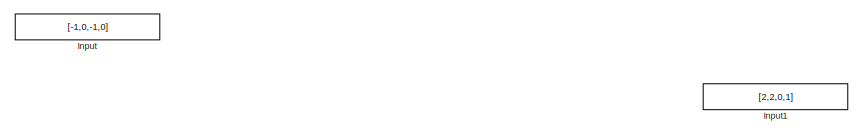
[diagram: root canvas - part 1/3, top left region]
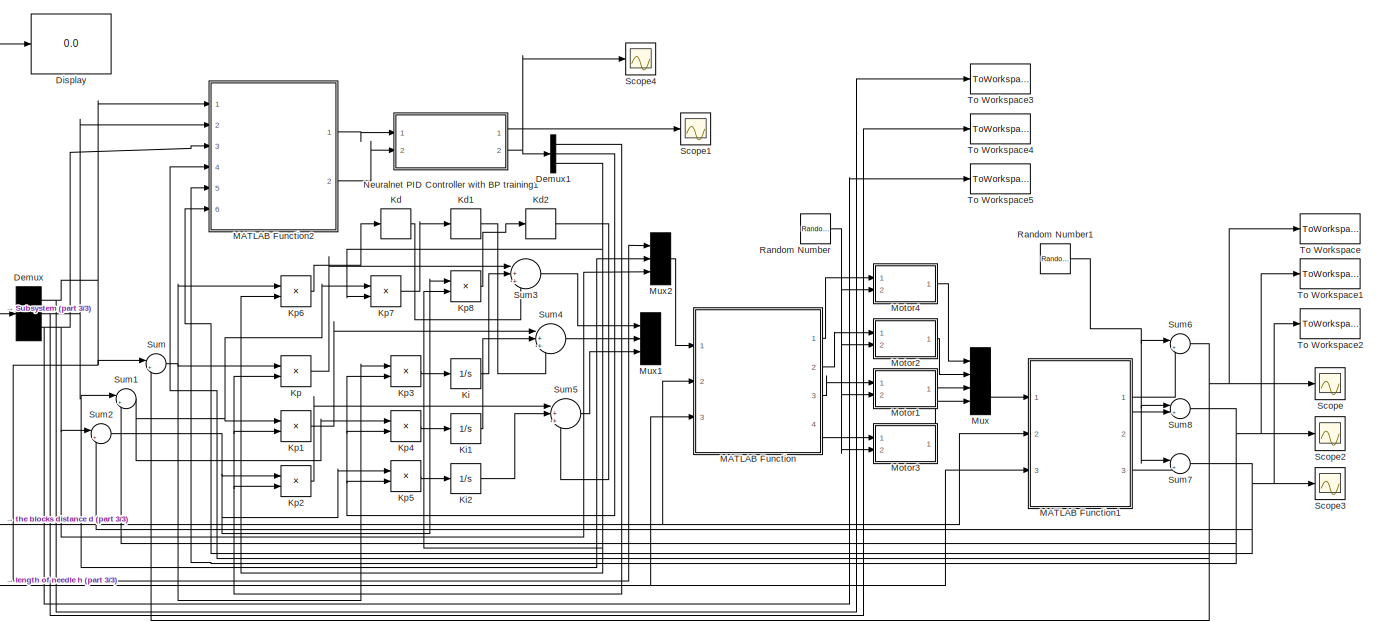
[diagram: root canvas - part 2/3, most of the canvas]
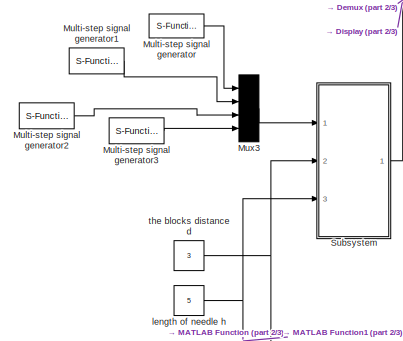
[diagram: root canvas - part 3/3, middle left region]
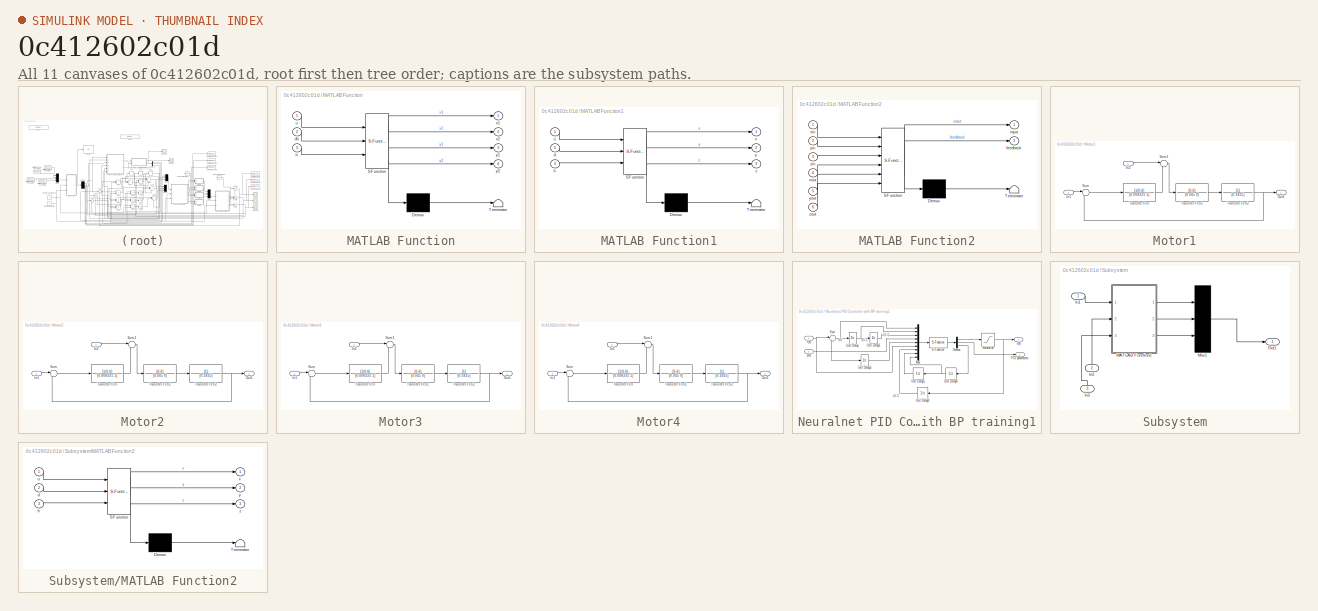
[diagram: thumbnail index - all 11 canvases of the model, root first then tree order]
MODEL slx_0c412602c01d
KIND model
CONFIG AbsTol = auto
CONFIG FixedStep = 0.01
CONFIG MaxStep = auto
CONFIG MinStep = auto
CONFIG RelTol = 1e-3
CONFIG SampleTimeConstraint = Unconstrained
CONFIG Solver = ode45
CONFIG SolverMode = Auto
CONFIG SolverName = ode45
CONFIG StartTime = 0.0
CONFIG StopTime = 10
BLOCK [Demux] Demux
  DisplayOption = bar
  Outputs = 3
  Ports = [1, 3]
BLOCK [Demux] Demux1
  DisplayOption = bar
  Outputs = 3
  Ports = [1, 3]
BLOCK [Display] Display
  Decimation = 1
  Ports = [1]
BLOCK [Constant] Input
  Commented = on
  Value = [-1,0,-1,0]
BLOCK [Constant] Input1
  Commented = on
  Value = [2,2,0,1]
BLOCK [Derivative] Kd
BLOCK [Derivative] Kd1
BLOCK [Derivative] Kd2
BLOCK [Integrator] Ki 
  Ports = [1, 1]
BLOCK [Integrator] Ki1
  Ports = [1, 1]
BLOCK [Integrator] Ki2
  Ports = [1, 1]
BLOCK [Product] Kp
  InputSameDT = off
  OutDataTypeStr = Inherit: Inherit via internal rule
  Ports = [2, 1]
  RndMeth = Floor
  SaturateOnIntegerOverflow = off
BLOCK [Product] Kp1
  InputSameDT = off
  OutDataTypeStr = Inherit: Inherit via internal rule
  Ports = [2, 1]
  RndMeth = Floor
  SaturateOnIntegerOverflow = off
BLOCK [Product] Kp2
  InputSameDT = off
  OutDataTypeStr = Inherit: Inherit via internal rule
  Ports = [2, 1]
  RndMeth = Floor
  SaturateOnIntegerOverflow = off
BLOCK [Product] Kp3
  InputSameDT = off
  OutDataTypeStr = Inherit: Inherit via internal rule
  Ports = [2, 1]
  RndMeth = Floor
  SaturateOnIntegerOverflow = off
BLOCK [Product] Kp4
  InputSameDT = off
  OutDataTypeStr = Inherit: Inherit via internal rule
  Ports = [2, 1]
  RndMeth = Floor
  SaturateOnIntegerOverflow = off
BLOCK [Product] Kp5
  InputSameDT = off
  OutDataTypeStr = Inherit: Inherit via internal rule
  Ports = [2, 1]
  RndMeth = Floor
  SaturateOnIntegerOverflow = off
BLOCK [Product] Kp6
  InputSameDT = off
  OutDataTypeStr = Inherit: Inherit via internal rule
  Ports = [2, 1]
  RndMeth = Floor
  SaturateOnIntegerOverflow = off
BLOCK [Product] Kp7
  InputSameDT = off
  OutDataTypeStr = Inherit: Inherit via internal rule
  Ports = [2, 1]
  RndMeth = Floor
  SaturateOnIntegerOverflow = off
BLOCK [Product] Kp8
  InputSameDT = off
  OutDataTypeStr = Inherit: Inherit via internal rule
  Ports = [2, 1]
  RndMeth = Floor
  SaturateOnIntegerOverflow = off
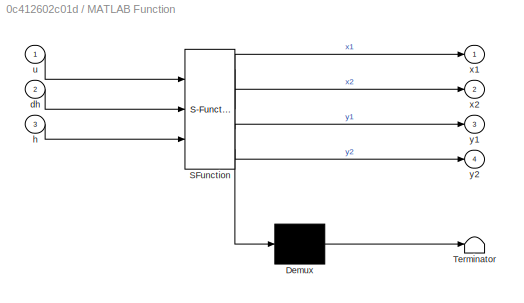
BLOCK [SubSystem] MATLAB Function
  ErrorFcn = Stateflow.Translate.translate
  PermitHierarchicalResolution = ExplicitOnly
  Ports = [3, 4]
  RequestExecContextInheritance = off
  SFBlockType = MATLAB Function
  TreatAsAtomicUnit = on
BLOCK [Demux] MATLAB Function/ Demux 
  Outputs = 1
  Ports = [1, 1]
BLOCK [S-Function] MATLAB Function/ SFunction 
  EnableBusSupport = on
  FunctionName = sf_sfun
  PortCounts = [3 5]
  Ports = [3, 5]
  Tag = Stateflow S-Function needle3 2
BLOCK [Terminator] MATLAB Function/ Terminator 
BLOCK [Inport] MATLAB Function/dh
  IconDisplay = Port number
  Port = 2
BLOCK [Inport] MATLAB Function/h
  IconDisplay = Port number
  Port = 3
BLOCK [Inport] MATLAB Function/u
  IconDisplay = Port number
BLOCK [Outport] MATLAB Function/x1
  IconDisplay = Port number
BLOCK [Outport] MATLAB Function/x2
  IconDisplay = Port number
  Port = 2
BLOCK [Outport] MATLAB Function/y1
  IconDisplay = Port number
  Port = 3
BLOCK [Outport] MATLAB Function/y2
  IconDisplay = Port number
  Port = 4
BLOCK [SubSystem] MATLAB Function1
  ErrorFcn = Stateflow.Translate.translate
  PermitHierarchicalResolution = ExplicitOnly
  Ports = [3, 3]
  RequestExecContextInheritance = off
  SFBlockType = MATLAB Function
  TreatAsAtomicUnit = on
BLOCK [Demux] MATLAB Function1/ Demux 
  Outputs = 1
  Ports = [1, 1]
BLOCK [S-Function] MATLAB Function1/ SFunction 
  EnableBusSupport = on
  FunctionName = sf_sfun
  PortCounts = [3 4]
  Ports = [3, 4]
  Tag = Stateflow S-Function needle3 1
BLOCK [Terminator] MATLAB Function1/ Terminator 
BLOCK [Inport] MATLAB Function1/d
  IconDisplay = Port number
  Port = 2
BLOCK [Inport] MATLAB Function1/h
  IconDisplay = Port number
  Port = 3
BLOCK [Inport] MATLAB Function1/u
  IconDisplay = Port number
BLOCK [Outport] MATLAB Function1/x
  IconDisplay = Port number
BLOCK [Outport] MATLAB Function1/y
  IconDisplay = Port number
  Port = 2
BLOCK [Outport] MATLAB Function1/z
  IconDisplay = Port number
  Port = 3
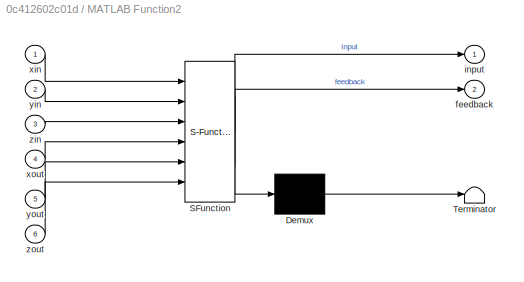
BLOCK [SubSystem] MATLAB Function2
  ErrorFcn = Stateflow.Translate.translate
  PermitHierarchicalResolution = ExplicitOnly
  Ports = [6, 2]
  RequestExecContextInheritance = off
  SFBlockType = MATLAB Function
  TreatAsAtomicUnit = on
BLOCK [Demux] MATLAB Function2/ Demux 
  Outputs = 1
  Ports = [1, 1]
BLOCK [S-Function] MATLAB Function2/ SFunction 
  EnableBusSupport = on
  FunctionName = sf_sfun
  PortCounts = [6 3]
  Ports = [6, 3]
  Tag = Stateflow S-Function needle3 4
BLOCK [Terminator] MATLAB Function2/ Terminator 
BLOCK [Outport] MATLAB Function2/feedback
  IconDisplay = Port number
  Port = 2
BLOCK [Outport] MATLAB Function2/input
  IconDisplay = Port number
BLOCK [Inport] MATLAB Function2/xin
  IconDisplay = Port number
BLOCK [Inport] MATLAB Function2/xout
  IconDisplay = Port number
  Port = 4
BLOCK [Inport] MATLAB Function2/yin
  IconDisplay = Port number
  Port = 2
BLOCK [Inport] MATLAB Function2/yout
  IconDisplay = Port number
  Port = 5
BLOCK [Inport] MATLAB Function2/zin
  IconDisplay = Port number
  Port = 3
BLOCK [Inport] MATLAB Function2/zout
  IconDisplay = Port number
  Port = 6
BLOCK [SubSystem] Motor1
  Ports = [2, 1]
  RequestExecContextInheritance = off
BLOCK [Inport] Motor1/In1
  IconDisplay = Port number
BLOCK [Inport] Motor1/In2
  IconDisplay = Port number
  Port = 2
BLOCK [Outport] Motor1/Out1
  IconDisplay = Port number
BLOCK [Sum] Motor1/Sum
  IconShape = round
  InputSameDT = off
  Inputs = |+-
  OutDataTypeStr = Inherit: Inherit via internal rule
  Ports = [2, 1]
  SaturateOnIntegerOverflow = off
BLOCK [Sum] Motor1/Sum1
  IconShape = round
  InputSameDT = off
  Inputs = |++
  OutDataTypeStr = Inherit: Inherit via internal rule
  Ports = [2, 1]
  SaturateOnIntegerOverflow = off
BLOCK [TransferFcn] Motor1/Transfer Fcn
  Denominator = [0.008331 1]
  Numerator = [1/0.6]
BLOCK [TransferFcn] Motor1/Transfer Fcn1
  Denominator = [0.045 0]
  Numerator = [0.6]
BLOCK [TransferFcn] Motor1/Transfer Fcn2
  Denominator = [0.1825]
BLOCK [SubSystem] Motor2
  Ports = [2, 1]
  RequestExecContextInheritance = off
BLOCK [Inport] Motor2/In1
  IconDisplay = Port number
BLOCK [Inport] Motor2/In2
  IconDisplay = Port number
  Port = 2
BLOCK [Outport] Motor2/Out1
  IconDisplay = Port number
BLOCK [Sum] Motor2/Sum
  IconShape = round
  InputSameDT = off
  Inputs = |+-
  OutDataTypeStr = Inherit: Inherit via internal rule
  Ports = [2, 1]
  SaturateOnIntegerOverflow = off
BLOCK [Sum] Motor2/Sum1
  IconShape = round
  InputSameDT = off
  Inputs = |++
  OutDataTypeStr = Inherit: Inherit via internal rule
  Ports = [2, 1]
  SaturateOnIntegerOverflow = off
BLOCK [TransferFcn] Motor2/Transfer Fcn
  Denominator = [0.008331 1]
  Numerator = [1/0.6]
BLOCK [TransferFcn] Motor2/Transfer Fcn1
  Denominator = [0.045 0]
  Numerator = [0.6]
BLOCK [TransferFcn] Motor2/Transfer Fcn2
  Denominator = [0.1825]
BLOCK [SubSystem] Motor3
  Ports = [2, 1]
  RequestExecContextInheritance = off
BLOCK [Inport] Motor3/In1
  IconDisplay = Port number
BLOCK [Inport] Motor3/In2
  IconDisplay = Port number
  Port = 2
BLOCK [Outport] Motor3/Out1
  IconDisplay = Port number
BLOCK [Sum] Motor3/Sum
  IconShape = round
  InputSameDT = off
  Inputs = |+-
  OutDataTypeStr = Inherit: Inherit via internal rule
  Ports = [2, 1]
  SaturateOnIntegerOverflow = off
BLOCK [Sum] Motor3/Sum1
  IconShape = round
  InputSameDT = off
  Inputs = |++
  OutDataTypeStr = Inherit: Inherit via internal rule
  Ports = [2, 1]
  SaturateOnIntegerOverflow = off
BLOCK [TransferFcn] Motor3/Transfer Fcn
  Denominator = [0.008331 1]
  Numerator = [1/0.6]
BLOCK [TransferFcn] Motor3/Transfer Fcn1
  Denominator = [0.045 0]
  Numerator = [0.6]
BLOCK [TransferFcn] Motor3/Transfer Fcn2
  Denominator = [0.1825]
BLOCK [SubSystem] Motor4
  Ports = [2, 1]
  RequestExecContextInheritance = off
BLOCK [Inport] Motor4/In1
  IconDisplay = Port number
BLOCK [Inport] Motor4/In2
  IconDisplay = Port number
  Port = 2
BLOCK [Outport] Motor4/Out1
  IconDisplay = Port number
BLOCK [Sum] Motor4/Sum
  IconShape = round
  InputSameDT = off
  Inputs = |+-
  OutDataTypeStr = Inherit: Inherit via internal rule
  Ports = [2, 1]
  SaturateOnIntegerOverflow = off
BLOCK [Sum] Motor4/Sum1
  IconShape = round
  InputSameDT = off
  Inputs = |++
  OutDataTypeStr = Inherit: Inherit via internal rule
  Ports = [2, 1]
  SaturateOnIntegerOverflow = off
BLOCK [TransferFcn] Motor4/Transfer Fcn
  Denominator = [0.008331 1]
  Numerator = [1/0.6]
BLOCK [TransferFcn] Motor4/Transfer Fcn1
  Denominator = [0.045 0]
  Numerator = [0.6]
BLOCK [TransferFcn] Motor4/Transfer Fcn2
  Denominator = [0.1825]
BLOCK [S-Function] Multi-step signal generator
  FunctionName = multi_step
  Parameters = tTime,yStep
  Ports = [0, 1]
BLOCK [S-Function] Multi-step signal generator1
  FunctionName = multi_step
  Parameters = tTime,yStep
  Ports = [0, 1]
BLOCK [S-Function] Multi-step signal generator2
  FunctionName = multi_step
  Parameters = tTime,yStep
  Ports = [0, 1]
BLOCK [S-Function] Multi-step signal generator3
  FunctionName = multi_step
  Parameters = tTime,yStep
  Ports = [0, 1]
BLOCK [Mux] Mux
  Ports = [4, 1]
BLOCK [Mux] Mux1
  Inputs = 3
  Ports = [3, 1]
BLOCK [Mux] Mux2
  Inputs = 3
  Ports = [3, 1]
BLOCK [Mux] Mux3
  Ports = [4, 1]
BLOCK [SubSystem] Neuralnet PID Controller with BP training1
  Ports = [2, 2]
  RequestExecContextInheritance = off
BLOCK [Demux] Neuralnet PID Controller with BP training1/Demux
  Outputs = [1,3,7*n_hidden]
  Ports = [1, 3]
BLOCK [Mux] Neuralnet PID Controller with BP training1/Mux
  DisplayOption = bar
  Inputs = 9
  Ports = [9, 1]
BLOCK [Outport] Neuralnet PID Controller with BP training1/PID parameters
  IconDisplay = Port number
  Port = 2
BLOCK [S-Function] Neuralnet PID Controller with BP training1/S-Function
  FunctionName = nnbp_pid
  Parameters = T,n_hidden,xite,alfa,kFunc1,kFunc2
  Ports = [1, 1]
BLOCK [Saturate] Neuralnet PID Controller with BP training1/Saturation
  InputPortMap = u0
  LowerLimit = -U_m
  Ports = [1, 1]
  UpperLimit = U_m
BLOCK [Sum] Neuralnet PID Controller with BP training1/Sum
  IconShape = round
  InputSameDT = off
  Inputs = |+-
  OutDataTypeStr = Inherit: Inherit via internal rule
  Ports = [2, 1]
BLOCK [UnitDelay] Neuralnet PID Controller with BP training1/Unit Delay
  SampleTime = -1
BLOCK [UnitDelay] Neuralnet PID Controller with BP training1/Unit Delay1
  SampleTime = -1
BLOCK [UnitDelay] Neuralnet PID Controller with BP training1/Unit Delay2
  SampleTime = -1
BLOCK [UnitDelay] Neuralnet PID Controller with BP training1/Unit Delay3
  SampleTime = -1
BLOCK [UnitDelay] Neuralnet PID Controller with BP training1/Unit Delay4
  SampleTime = -1
BLOCK [UnitDelay] Neuralnet PID Controller with BP training1/Unit Delay5
  SampleTime = -1
BLOCK [Inport] Neuralnet PID Controller with BP training1/r(k)
  IconDisplay = Port number
BLOCK [Outport] Neuralnet PID Controller with BP training1/u(k)
  IconDisplay = Port number
BLOCK [Inport] Neuralnet PID Controller with BP training1/y(k)
  IconDisplay = Port number
  Port = 2
BLOCK [RandomNumber] Random Number
  SampleTime = 0.01
  Variance = 0.0005
BLOCK [RandomNumber] Random Number1
  SampleTime = 0.01
  Seed = 1
  Variance = 0.0005
BLOCK [Scope] Scope
  Floating = off
  NumInputPorts = 1
  Ports = [1]
  ZoomMode = yonly
BLOCK [Scope] Scope1
  Floating = off
  NumInputPorts = 1
  Ports = [1]
  SaveName = ScopeData1
  ZoomMode = yonly
BLOCK [Scope] Scope2
  Floating = off
  NumInputPorts = 1
  Ports = [1]
  SaveName = ScopeData2
  ZoomMode = yonly
BLOCK [Scope] Scope3
  Floating = off
  NumInputPorts = 1
  Ports = [1]
  SaveName = ScopeData3
BLOCK [Scope] Scope4
  Floating = off
  NumInputPorts = 1
  Ports = [1]
  SaveName = ScopeData4
BLOCK [SubSystem] Subsystem
  Ports = [3, 1]
  RequestExecContextInheritance = off
BLOCK [Inport] Subsystem/In1
  IconDisplay = Port number
BLOCK [Inport] Subsystem/In2
  IconDisplay = Port number
  Port = 2
BLOCK [Inport] Subsystem/In3
  IconDisplay = Port number
  Port = 3
BLOCK [SubSystem] Subsystem/MATLAB Function2
  ErrorFcn = Stateflow.Translate.translate
  PermitHierarchicalResolution = ExplicitOnly
  Ports = [3, 3]
  RequestExecContextInheritance = off
  SFBlockType = MATLAB Function
  TreatAsAtomicUnit = on
BLOCK [Demux] Subsystem/MATLAB Function2/ Demux 
  Outputs = 1
  Ports = [1, 1]
BLOCK [S-Function] Subsystem/MATLAB Function2/ SFunction 
  EnableBusSupport = on
  FunctionName = sf_sfun
  PortCounts = [3 4]
  Ports = [3, 4]
  Tag = Stateflow S-Function needle3 3
BLOCK [Terminator] Subsystem/MATLAB Function2/ Terminator 
BLOCK [Inport] Subsystem/MATLAB Function2/d
  IconDisplay = Port number
  Port = 2
BLOCK [Inport] Subsystem/MATLAB Function2/h
  IconDisplay = Port number
  Port = 3
BLOCK [Inport] Subsystem/MATLAB Function2/u
  IconDisplay = Port number
BLOCK [Outport] Subsystem/MATLAB Function2/x
  IconDisplay = Port number
BLOCK [Outport] Subsystem/MATLAB Function2/y
  IconDisplay = Port number
  Port = 2
BLOCK [Outport] Subsystem/MATLAB Function2/z
  IconDisplay = Port number
  Port = 3
BLOCK [Mux] Subsystem/Mux1
  Inputs = 3
  Ports = [3, 1]
BLOCK [Outport] Subsystem/Out1
  IconDisplay = Port number
BLOCK [Sum] Sum
  IconShape = round
  InputSameDT = off
  Inputs = |+-
  OutDataTypeStr = Inherit: Inherit via internal rule
  Ports = [2, 1]
  SaturateOnIntegerOverflow = off
BLOCK [Sum] Sum1
  IconShape = round
  InputSameDT = off
  Inputs = |+-
  OutDataTypeStr = Inherit: Inherit via internal rule
  Ports = [2, 1]
  SaturateOnIntegerOverflow = off
BLOCK [Sum] Sum2
  IconShape = round
  InputSameDT = off
  Inputs = |+-
  OutDataTypeStr = Inherit: Inherit via internal rule
  Ports = [2, 1]
  SaturateOnIntegerOverflow = off
BLOCK [Sum] Sum3
  IconShape = round
  InputSameDT = off
  Inputs = |+++
  OutDataTypeStr = Inherit: Inherit via internal rule
  Ports = [3, 1]
  SaturateOnIntegerOverflow = off
BLOCK [Sum] Sum4
  IconShape = round
  InputSameDT = off
  Inputs = |+++
  OutDataTypeStr = Inherit: Inherit via internal rule
  Ports = [3, 1]
  SaturateOnIntegerOverflow = off
BLOCK [Sum] Sum5
  IconShape = round
  InputSameDT = off
  Inputs = |+++
  OutDataTypeStr = Inherit: Inherit via internal rule
  Ports = [3, 1]
  SaturateOnIntegerOverflow = off
BLOCK [Sum] Sum6
  IconShape = round
  InputSameDT = off
  Inputs = |++
  OutDataTypeStr = Inherit: Inherit via internal rule
  Ports = [2, 1]
  SaturateOnIntegerOverflow = off
BLOCK [Sum] Sum7
  IconShape = round
  InputSameDT = off
  Inputs = |++
  OutDataTypeStr = Inherit: Inherit via internal rule
  Ports = [2, 1]
  SaturateOnIntegerOverflow = off
BLOCK [Sum] Sum8
  IconShape = round
  InputSameDT = off
  Inputs = |++
  OutDataTypeStr = Inherit: Inherit via internal rule
  Ports = [2, 1]
  SaturateOnIntegerOverflow = off
BLOCK [ToWorkspace] To Workspace
  FixptAsFi = on
  MaxDataPoints = inf
  Ports = [1]
  SampleTime = -1
  Save2DSignal = 3-D array (concatenate along third dimension)
  SaveFormat = Timeseries
  VariableName = x
BLOCK [ToWorkspace] To Workspace1
  FixptAsFi = on
  MaxDataPoints = inf
  Ports = [1]
  SampleTime = -1
  Save2DSignal = 3-D array (concatenate along third dimension)
  SaveFormat = Timeseries
  VariableName = y
BLOCK [ToWorkspace] To Workspace2
  FixptAsFi = on
  MaxDataPoints = inf
  Ports = [1]
  SampleTime = -1
  Save2DSignal = 3-D array (concatenate along third dimension)
  SaveFormat = Timeseries
  VariableName = z
BLOCK [ToWorkspace] To Workspace3
  FixptAsFi = on
  MaxDataPoints = inf
  Ports = [1]
  SampleTime = -1
  Save2DSignal = 3-D array (concatenate along third dimension)
  SaveFormat = Timeseries
  VariableName = x1
BLOCK [ToWorkspace] To Workspace4
  FixptAsFi = on
  MaxDataPoints = inf
  Ports = [1]
  SampleTime = -1
  Save2DSignal = 3-D array (concatenate along third dimension)
  SaveFormat = Timeseries
  VariableName = y1
BLOCK [ToWorkspace] To Workspace5
  FixptAsFi = on
  MaxDataPoints = inf
  Ports = [1]
  SampleTime = -1
  Save2DSignal = 3-D array (concatenate along third dimension)
  SaveFormat = Timeseries
  VariableName = z1
BLOCK [Constant] length of needle h
  Value = 5
BLOCK [Constant] the blocks distance d
  Value = 3
ANNOTATION Neuralnet PID Controller with BP training1: e(k)
ANNOTATION Neuralnet PID Controller with BP training1: e(k-1)
ANNOTATION Neuralnet PID Controller with BP training1: e(k-2)
ANNOTATION Neuralnet PID Controller with BP training1: u(k-1)
NET Demux1:1 -> Kp1:2, Kp2:2, Kp:2
NET Demux1:2 -> Kp3:2, Kp4:2, Kp5:2
NET Demux1:3 -> Kp6:2, Kp7:2, Kp8:2
NET Demux:1 -> MATLAB Function2:1, Mux2:1, Sum:1, To Workspace3:1
NET Demux:2 -> MATLAB Function2:2, Mux2:2, Sum1:1, To Workspace4:1
NET Demux:3 -> MATLAB Function2:3, Mux2:3, Sum2:1, To Workspace5:1
LINE Kd1:1 -> Sum4:3
LINE Kd2:1 -> Sum5:3
LINE Kd:1 -> Sum3:3
LINE Ki :1 -> Sum3:2
LINE Ki1:1 -> Sum4:2
LINE Ki2:1 -> Sum5:2
LINE Kp1:1 -> Sum4:1
LINE Kp2:1 -> Sum5:1
LINE Kp3:1 -> Ki :1
LINE Kp4:1 -> Ki1:1
LINE Kp5:1 -> Ki2:1
LINE Kp6:1 -> Kd:1
LINE Kp7:1 -> Kd1:1
LINE Kp8:1 -> Kd2:1
LINE Kp:1 -> Sum3:1
LINE MATLAB Function1:1 -> Sum6:2
LINE MATLAB Function1:2 -> Sum8:2
LINE MATLAB Function1:3 -> Sum7:2
LINE MATLAB Function2:1 -> Neuralnet PID Controller with BP training1:1
LINE MATLAB Function2:2 -> Neuralnet PID Controller with BP training1:2
LINE MATLAB Function:1 -> Motor4:1
LINE MATLAB Function:2 -> Motor2:1
LINE MATLAB Function:3 -> Motor1:1
LINE MATLAB Function:4 -> Motor3:1
LINE Motor1/In1:1 -> Motor1/Sum:1
LINE Motor1/In2:1 -> Motor1/Sum1:1
LINE Motor1/Sum1:1 -> Motor1/Transfer Fcn1:1
LINE Motor1/Sum:1 -> Motor1/Transfer Fcn:1
LINE Motor1/Transfer Fcn1:1 -> Motor1/Transfer Fcn2:1
NET Motor1/Transfer Fcn2:1 -> Motor1/Out1:1, Motor1/Sum:2
LINE Motor1/Transfer Fcn:1 -> Motor1/Sum1:2
LINE Motor1:1 -> Mux:3
LINE Motor2/In1:1 -> Motor2/Sum:1
LINE Motor2/In2:1 -> Motor2/Sum1:1
LINE Motor2/Sum1:1 -> Motor2/Transfer Fcn1:1
LINE Motor2/Sum:1 -> Motor2/Transfer Fcn:1
LINE Motor2/Transfer Fcn1:1 -> Motor2/Transfer Fcn2:1
NET Motor2/Transfer Fcn2:1 -> Motor2/Out1:1, Motor2/Sum:2
LINE Motor2/Transfer Fcn:1 -> Motor2/Sum1:2
LINE Motor2:1 -> Mux:2
LINE Motor3/In1:1 -> Motor3/Sum:1
LINE Motor3/In2:1 -> Motor3/Sum1:1
LINE Motor3/Sum1:1 -> Motor3/Transfer Fcn1:1
LINE Motor3/Sum:1 -> Motor3/Transfer Fcn:1
LINE Motor3/Transfer Fcn1:1 -> Motor3/Transfer Fcn2:1
NET Motor3/Transfer Fcn2:1 -> Motor3/Out1:1, Motor3/Sum:2
LINE Motor3/Transfer Fcn:1 -> Motor3/Sum1:2
LINE Motor3:1 -> Mux:4
LINE Motor4/In1:1 -> Motor4/Sum:1
LINE Motor4/In2:1 -> Motor4/Sum1:1
LINE Motor4/Sum1:1 -> Motor4/Transfer Fcn1:1
LINE Motor4/Sum:1 -> Motor4/Transfer Fcn:1
LINE Motor4/Transfer Fcn1:1 -> Motor4/Transfer Fcn2:1
NET Motor4/Transfer Fcn2:1 -> Motor4/Out1:1, Motor4/Sum:2
LINE Motor4/Transfer Fcn:1 -> Motor4/Sum1:2
LINE Motor4:1 -> Mux:1
LINE Multi-step signal generator1:1 -> Mux3:2
LINE Multi-step signal generator2:1 -> Mux3:3
LINE Multi-step signal generator3:1 -> Mux3:4
LINE Multi-step signal generator:1 -> Mux3:1
LINE Mux2:1 -> MATLAB Function:1
LINE Mux3:1 -> Subsystem:1
LINE Mux:1 -> MATLAB Function1:1
LINE Neuralnet PID Controller with BP training1/Demux:1 -> Neuralnet PID Controller with BP training1/Saturation:1
LINE Neuralnet PID Controller with BP training1/Demux:2 -> Neuralnet PID Controller with BP training1/PID parameters:1
LINE Neuralnet PID Controller with BP training1/Demux:3 -> Neuralnet PID Controller with BP training1/Unit Delay4:1
LINE Neuralnet PID Controller with BP training1/Mux:1 -> Neuralnet PID Controller with BP training1/S-Function:1
LINE Neuralnet PID Controller with BP training1/S-Function:1 -> Neuralnet PID Controller with BP training1/Demux:1
NET Neuralnet PID Controller with BP training1/Saturation:1 -> Neuralnet PID Controller with BP training1/Unit Delay2:1, Neuralnet PID Controller with BP training1/u(k):1
NET Neuralnet PID Controller with BP training1/Sum:1 -> Neuralnet PID Controller with BP training1/Mux:1, Neuralnet PID Controller with BP training1/Unit Delay:1
LINE Neuralnet PID Controller with BP training1/Unit Delay1:1 -> Neuralnet PID Controller with BP training1/Mux:3
LINE Neuralnet PID Controller with BP training1/Unit Delay2:1 -> Neuralnet PID Controller with BP training1/Mux:7
LINE Neuralnet PID Controller with BP training1/Unit Delay3:1 -> Neuralnet PID Controller with BP training1/Mux:5
NET Neuralnet PID Controller with BP training1/Unit Delay4:1 -> Neuralnet PID Controller with BP training1/Mux:9, Neuralnet PID Controller with BP training1/Unit Delay5:1
LINE Neuralnet PID Controller with BP training1/Unit Delay5:1 -> Neuralnet PID Controller with BP training1/Mux:8
NET Neuralnet PID Controller with BP training1/Unit Delay:1 -> Neuralnet PID Controller with BP training1/Mux:2, Neuralnet PID Controller with BP training1/Unit Delay1:1
NET Neuralnet PID Controller with BP training1/r(k):1 -> Neuralnet PID Controller with BP training1/Mux:6, Neuralnet PID Controller with BP training1/Sum:1
NET Neuralnet PID Controller with BP training1/y(k):1 -> Neuralnet PID Controller with BP training1/Mux:4, Neuralnet PID Controller with BP training1/Sum:2, Neuralnet PID Controller with BP training1/Unit Delay3:1
LINE Neuralnet PID Controller with BP training1:1 -> Scope1:1
NET Neuralnet PID Controller with BP training1:2 -> Demux1:1, Scope4:1
NET Random Number1:1 -> Sum6:1, Sum7:1, Sum8:1
NET Random Number:1 -> Motor1:2, Motor2:2, Motor3:2, Motor4:2
LINE Subsystem/In1:1 -> Subsystem/MATLAB Function2:1
LINE Subsystem/In2:1 -> Subsystem/MATLAB Function2:2
LINE Subsystem/In3:1 -> Subsystem/MATLAB Function2:3
LINE Subsystem/MATLAB Function2:1 -> Subsystem/Mux1:1
LINE Subsystem/MATLAB Function2:2 -> Subsystem/Mux1:2
LINE Subsystem/MATLAB Function2:3 -> Subsystem/Mux1:3
LINE Subsystem/Mux1:1 -> Subsystem/Out1:1
NET Subsystem:1 -> Demux:1, Display:1
NET Sum1:1 -> Kp1:1, Kp4:1, Kp7:1
NET Sum2:1 -> Kp2:1, Kp5:1, Kp8:1
LINE Sum3:1 -> Mux1:1
LINE Sum4:1 -> Mux1:2
LINE Sum5:1 -> Mux1:3
NET Sum6:1 -> MATLAB Function2:4, Scope:1, Sum:2, To Workspace:1
NET Sum7:1 -> MATLAB Function2:6, Scope3:1, Sum2:2, To Workspace2:1
NET Sum8:1 -> MATLAB Function2:5, Scope2:1, Sum1:2, To Workspace1:1
NET Sum:1 -> Kp3:1, Kp6:1, Kp:1
NET length of needle h:1 -> MATLAB Function1:3, MATLAB Function:3, Subsystem:3
NET the blocks distance d:1 -> MATLAB Function1:2, MATLAB Function:2, Subsystem:2
note: NET lines group one-source signal fan-out (src -> all destinations, sorted); 1:1 wires keep LINE
CHART MATLAB Function1 states=1 transitions=1
  STATE_LABEL 'eML_blk_kernel()'
  STATE_LABEL 'SCRIPT:\nfunction [x,y,z] = forward(u,d,h)\n%#codegen\n\n% y = u;\n% mid = asin(u/5);\n% \n% mid2 = 3 * tan(mid);\n% \n% ymid = mid2 / 0.2;\n% \n% y = pi * ymid;\n\nx1 = u(1);x2 = u(2);y1 = u(3); y2 = u(4);\n\n% T01=[1,0,0,0;0,cos(atan2((x1+x2),d)),-sin(atan2((x1+x2),d)),0;0,sin(atan2((x1+x2),d)),cos(atan2((x1+x2),d)),x1;0,0,0,1];\n% T1m=[0,0,1,0;1,0,0,0,;0,1,0,0;0,0,0,1];\n% Tmm1=[0,1,0,0;-1,0,0,0;0,0,1,0;0,0,0,1...<+318ch>'
CHART MATLAB Function states=1 transitions=1
  STATE_LABEL 'eML_blk_kernel()'
  STATE_LABEL 'SCRIPT:\nfunction [x1,x2,y1,y2] = inv(u,dh,h)\n%#codegen\n% u = 2.5\n% y = u;\nlimit = 2.774;\nX=u(1);Y=u(2);Z=u(3);\nforwardx = sign(X);forwardy=sign(Y);\n\nif (-limit<= X && X <= limit) && (-limit<= Y && Y <= limit)\n    X=abs(X);Y=abs(Y);\n    beta = atan2(Y,X);\n    H=sqrt(X^2+Y^2);\n    theta=asin(H/h);\n    D=dh*tan(theta);\n    y1 = -forwardy * D * sin(beta);\n    x1 = -forwardx * D * cos(beta);\n    x2 = 0...<+2652ch>'
CHART Subsystem/MATLAB Function2 states=1 transitions=1
  STATE_LABEL 'eML_blk_kernel()'
  STATE_LABEL 'SCRIPT:\nfunction [x,y,z] = forward(u,d,h)\n%#codegen\n\n% y = u;\n% mid = asin(u/5);\n% \n% mid2 = 3 * tan(mid);\n% \n% ymid = mid2 / 0.2;\n% \n% y = pi * ymid;\n\nx1 = u(1);x2 = u(2);y1 = u(3); y2 = u(4);\n\n% T01=[1,0,0,0;0,cos(atan2((x1+x2),d)),-sin(atan2((x1+x2),d)),0;0,sin(atan2((x1+x2),d)),cos(atan2((x1+x2),d)),x1;0,0,0,1];\n% T1m=[0,0,1,0;1,0,0,0,;0,1,0,0;0,0,0,1];\n% Tmm1=[0,1,0,0;-1,0,0,0;0,0,1,0;0,0,0,1...<+318ch>'
CHART MATLAB Function2 states=1 transitions=1
  STATE_LABEL 'eML_blk_kernel()'
  STATE_LABEL 'SCRIPT:\nfunction [input, feedback]  = distancexyz(xin, yin, zin, xout, yout, zout)\n    \norign = sqrt(xin^2 + yin^2 + zin^2);\ntarget = sqrt(xout^2 + yout^2 + zout^2);\ninput = orign;\nfeedback = target;\nend\n    '
